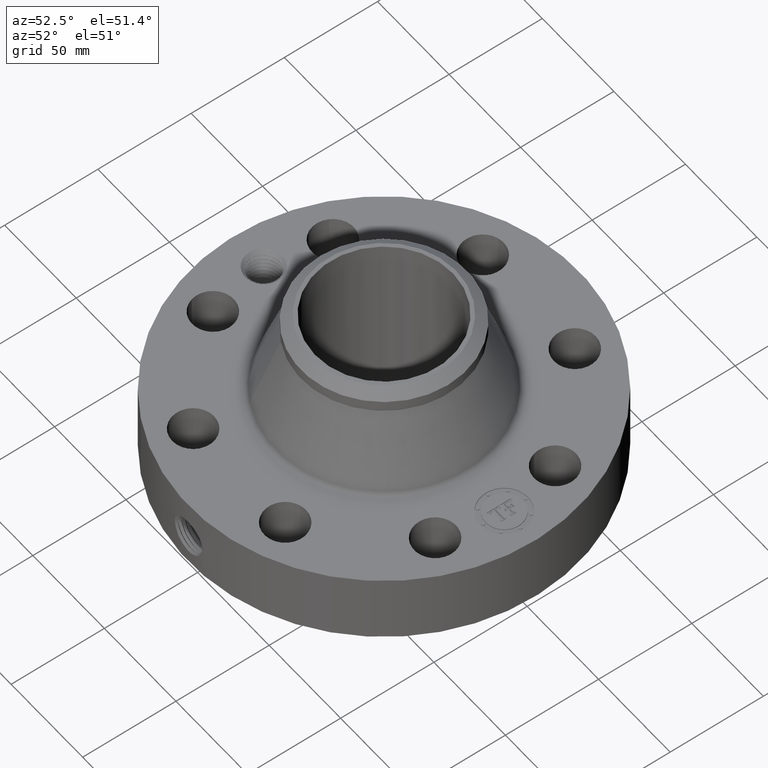
[diagram: clean part render]
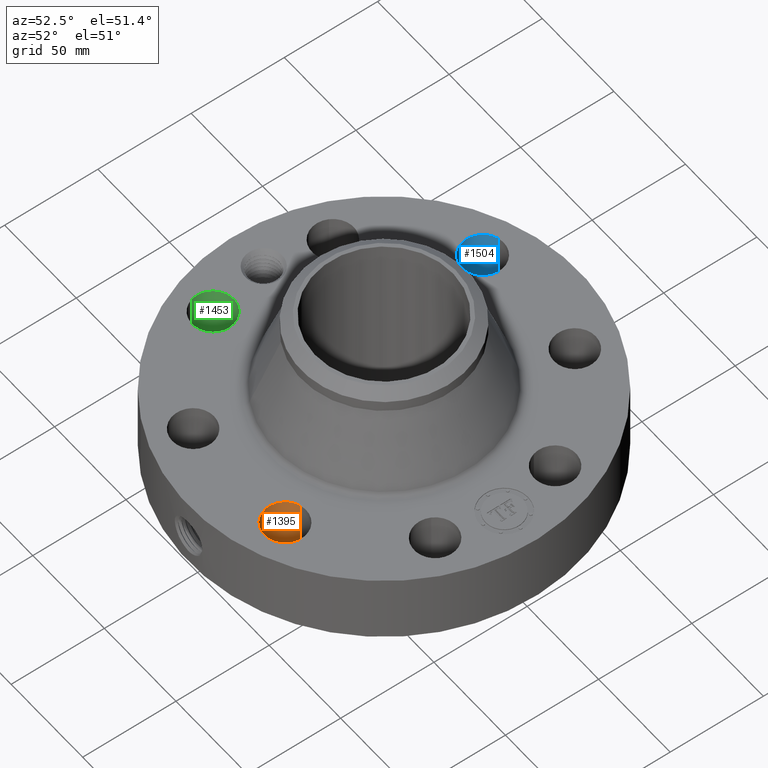
[diagram: same view with three faces highlighted in distinct colors, each labeled with its STEP entity id]
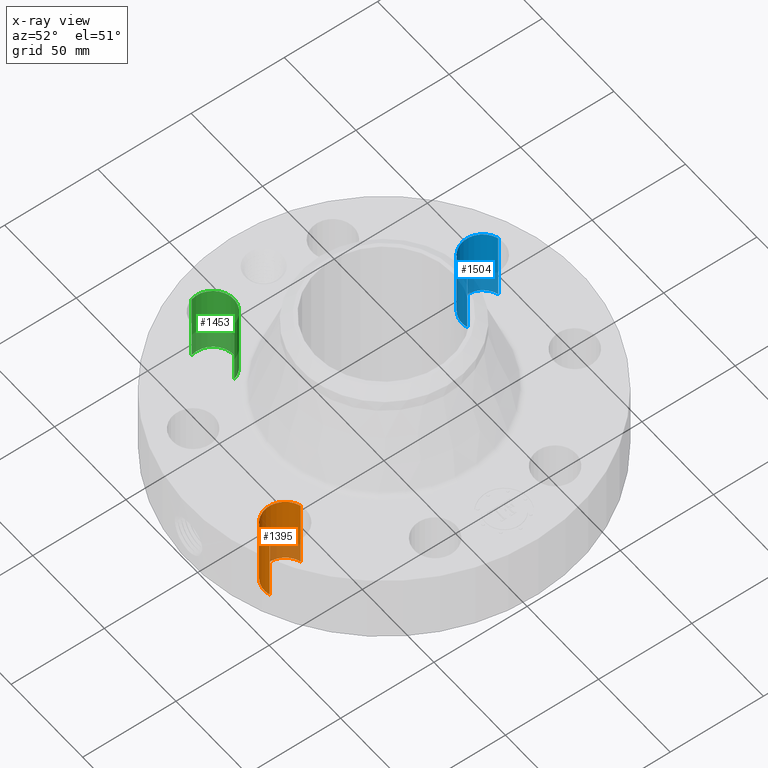
[diagram: x-ray of the same camera — body ghosted, the three highlighted faces saturated]
A machine part, auxiliary view with three faces highlighted in distinct colors.
The next image is the same camera in x-ray (body ghosted, the three faces saturated) — at least one of them is partly hidden behind the body in this view.
Their STEP definitions:

[orange] entity #1395 — the highlighted cylindrical surface (edge-blend (fillet) strip) has radius 11.176 mm, axis along (0, -0, -1).
#269=AXIS2_PLACEMENT_3D('Circle Axis2P3D',#267,#268,$) ;
#577=AXIS2_PLACEMENT_3D('Circle Axis2P3D',#575,#576,$) ;
#1370=AXIS2_PLACEMENT_3D('Cylinder Axis2P3D',#1367,#1368,#1369) ;
#262=CARTESIAN_POINT('Vertex',(1.14280476743,-2.63583941543,0.250000000001)) ;
#264=CARTESIAN_POINT('Vertex',(1.39055955484,-3.48024308982,0.250000000001)) ;
#267=CARTESIAN_POINT('Axis2P3D Location',(1.26668216113,-3.05804125262,0.250000000001)) ;
#575=CARTESIAN_POINT('Axis2P3D Location',(1.26668216113,-3.05804125262,1.75000000001)) ;
#579=CARTESIAN_POINT('Vertex',(1.39055955484,-3.48024308982,1.75000000001)) ;
#581=CARTESIAN_POINT('Vertex',(1.14280476743,-2.63583941543,1.75000000001)) ;
#1367=CARTESIAN_POINT('Axis2P3D Location',(1.26668216113,-3.05804125262,1.74606299213)) ;
#1372=CARTESIAN_POINT('Line Origine',(1.14280476743,-2.63583941543,1.)) ;
#1377=CARTESIAN_POINT('Line Origine',(1.39055955484,-3.48024308982,1.)) ;
#268=DIRECTION('Axis2P3D Direction',(0.,0.,-0.0393700787402)) ;
#576=DIRECTION('Axis2P3D Direction',(0.,0.,-0.0393700787402)) ;
#1368=DIRECTION('Axis2P3D Direction',(0.,-0.,-0.0393700787402)) ;
#1369=DIRECTION('Axis2P3D XDirection',(0.0110842335096,-0.0377775444876,0.)) ;
#1373=DIRECTION('Vector Direction',(0.,0.,-0.0393700787402)) ;
#1378=DIRECTION('Vector Direction',(0.,0.,-0.0393700787402)) ;
#1374=VECTOR('Line Direction',#1373,0.0393700787402) ;
#1379=VECTOR('Line Direction',#1378,0.0393700787402) ;
#1390=ORIENTED_EDGE('',*,*,#1381,.F.) ;
#1391=ORIENTED_EDGE('',*,*,#271,.T.) ;
#1392=ORIENTED_EDGE('',*,*,#1376,.T.) ;
#1393=ORIENTED_EDGE('',*,*,#583,.F.) ;
#1395=ADVANCED_FACE('PartBody',(#1394),#1371,.F.) ;
#270=CIRCLE('generated circle',#269,0.440000000002) ;
#578=CIRCLE('generated circle',#577,0.440000000002) ;
#1371=CYLINDRICAL_SURFACE('generated cylinder',#1370,0.440000000002) ;
#271=EDGE_CURVE('',#265,#263,#270,.T.) ;
#583=EDGE_CURVE('',#580,#582,#578,.T.) ;
#1376=EDGE_CURVE('',#263,#582,#1375,.F.) ;
#1381=EDGE_CURVE('',#265,#580,#1380,.F.) ;
#1389=EDGE_LOOP('',(#1390,#1391,#1392,#1393)) ;
#1394=FACE_OUTER_BOUND('',#1389,.T.) ;
#1375=LINE('Line',#1372,#1374) ;
#1380=LINE('Line',#1377,#1379) ;
#263=VERTEX_POINT('',#262) ;
#265=VERTEX_POINT('',#264) ;
#580=VERTEX_POINT('',#579) ;
#582=VERTEX_POINT('',#581) ;

[blue] entity #1504 — the highlighted cylindrical surface (edge-blend (fillet) strip) has radius 11.176 mm, axis along (0, 0, -1).
#332=AXIS2_PLACEMENT_3D('Circle Axis2P3D',#330,#331,$) ;
#658=AXIS2_PLACEMENT_3D('Circle Axis2P3D',#656,#657,$) ;
#1486=AXIS2_PLACEMENT_3D('Cylinder Axis2P3D',#1483,#1484,#1485) ;
#330=CARTESIAN_POINT('Axis2P3D Location',(-1.26668216113,3.05804125262,0.250000000001)) ;
#334=CARTESIAN_POINT('Vertex',(-1.14280476743,2.63583941543,0.250000000001)) ;
#336=CARTESIAN_POINT('Vertex',(-1.39055955484,3.48024308982,0.250000000001)) ;
#651=CARTESIAN_POINT('Vertex',(-1.39055955484,3.48024308982,1.75000000001)) ;
#653=CARTESIAN_POINT('Vertex',(-1.14280476743,2.63583941543,1.75000000001)) ;
#656=CARTESIAN_POINT('Axis2P3D Location',(-1.26668216113,3.05804125262,1.75000000001)) ;
#1483=CARTESIAN_POINT('Axis2P3D Location',(-1.26668216113,3.05804125262,1.74606299213)) ;
#1488=CARTESIAN_POINT('Line Origine',(-1.14280476743,2.63583941543,1.)) ;
#1493=CARTESIAN_POINT('Line Origine',(-1.39055955484,3.48024308982,1.)) ;
#331=DIRECTION('Axis2P3D Direction',(0.,0.,-0.0393700787402)) ;
#657=DIRECTION('Axis2P3D Direction',(0.,0.,-0.0393700787402)) ;
#1484=DIRECTION('Axis2P3D Direction',(0.,0.,-0.0393700787402)) ;
#1485=DIRECTION('Axis2P3D XDirection',(-0.0110842335096,0.0377775444876,0.)) ;
#1489=DIRECTION('Vector Direction',(0.,0.,-0.0393700787402)) ;
#1494=DIRECTION('Vector Direction',(0.,0.,-0.0393700787402)) ;
#1490=VECTOR('Line Direction',#1489,0.0393700787402) ;
#1495=VECTOR('Line Direction',#1494,0.0393700787402) ;
#1499=ORIENTED_EDGE('',*,*,#1492,.F.) ;
#1500=ORIENTED_EDGE('',*,*,#338,.T.) ;
#1501=ORIENTED_EDGE('',*,*,#1497,.T.) ;
#1502=ORIENTED_EDGE('',*,*,#660,.F.) ;
#1504=ADVANCED_FACE('PartBody',(#1503),#1487,.F.) ;
#333=CIRCLE('generated circle',#332,0.440000000002) ;
#659=CIRCLE('generated circle',#658,0.440000000002) ;
#1487=CYLINDRICAL_SURFACE('generated cylinder',#1486,0.440000000002) ;
#338=EDGE_CURVE('',#335,#337,#333,.T.) ;
#660=EDGE_CURVE('',#654,#652,#659,.T.) ;
#1492=EDGE_CURVE('',#335,#654,#1491,.F.) ;
#1497=EDGE_CURVE('',#337,#652,#1496,.F.) ;
#1498=EDGE_LOOP('',(#1499,#1500,#1501,#1502)) ;
#1503=FACE_OUTER_BOUND('',#1498,.T.) ;
#1491=LINE('Line',#1488,#1490) ;
#1496=LINE('Line',#1493,#1495) ;
#335=VERTEX_POINT('',#334) ;
#337=VERTEX_POINT('',#336) ;
#652=VERTEX_POINT('',#651) ;
#654=VERTEX_POINT('',#653) ;

[green] entity #1453 — the highlighted cylindrical surface (edge-blend (fillet) strip) has radius 11.176 mm, axis along (-0, 0, -1).
#305=AXIS2_PLACEMENT_3D('Circle Axis2P3D',#303,#304,$) ;
#613=AXIS2_PLACEMENT_3D('Circle Axis2P3D',#611,#612,$) ;
#1428=AXIS2_PLACEMENT_3D('Cylinder Axis2P3D',#1425,#1426,#1427) ;
#298=CARTESIAN_POINT('Vertex',(-2.63583941543,-1.14280476743,0.250000000001)) ;
#300=CARTESIAN_POINT('Vertex',(-3.48024308982,-1.39055955484,0.250000000001)) ;
#303=CARTESIAN_POINT('Axis2P3D Location',(-3.05804125262,-1.26668216113,0.250000000001)) ;
#611=CARTESIAN_POINT('Axis2P3D Location',(-3.05804125262,-1.26668216113,1.75000000001)) ;
#615=CARTESIAN_POINT('Vertex',(-3.48024308982,-1.39055955484,1.75000000001)) ;
#617=CARTESIAN_POINT('Vertex',(-2.63583941543,-1.14280476743,1.75000000001)) ;
#1425=CARTESIAN_POINT('Axis2P3D Location',(-3.05804125262,-1.26668216113,1.74606299213)) ;
#1430=CARTESIAN_POINT('Line Origine',(-2.63583941543,-1.14280476743,1.)) ;
#1435=CARTESIAN_POINT('Line Origine',(-3.48024308982,-1.39055955484,1.)) ;
#304=DIRECTION('Axis2P3D Direction',(0.,0.,-0.0393700787402)) ;
#612=DIRECTION('Axis2P3D Direction',(0.,0.,-0.0393700787402)) ;
#1426=DIRECTION('Axis2P3D Direction',(-0.,0.,-0.0393700787402)) ;
#1427=DIRECTION('Axis2P3D XDirection',(-0.0377775444876,-0.0110842335096,0.)) ;
#1431=DIRECTION('Vector Direction',(0.,0.,-0.0393700787402)) ;
#1436=DIRECTION('Vector Direction',(0.,0.,-0.0393700787402)) ;
#1432=VECTOR('Line Direction',#1431,0.0393700787402) ;
#1437=VECTOR('Line Direction',#1436,0.0393700787402) ;
#1448=ORIENTED_EDGE('',*,*,#1439,.F.) ;
#1449=ORIENTED_EDGE('',*,*,#307,.T.) ;
#1450=ORIENTED_EDGE('',*,*,#1434,.T.) ;
#1451=ORIENTED_EDGE('',*,*,#619,.F.) ;
#1453=ADVANCED_FACE('PartBody',(#1452),#1429,.F.) ;
#306=CIRCLE('generated circle',#305,0.440000000002) ;
#614=CIRCLE('generated circle',#613,0.440000000002) ;
#1429=CYLINDRICAL_SURFACE('generated cylinder',#1428,0.440000000002) ;
#307=EDGE_CURVE('',#301,#299,#306,.T.) ;
#619=EDGE_CURVE('',#616,#618,#614,.T.) ;
#1434=EDGE_CURVE('',#299,#618,#1433,.F.) ;
#1439=EDGE_CURVE('',#301,#616,#1438,.F.) ;
#1447=EDGE_LOOP('',(#1448,#1449,#1450,#1451)) ;
#1452=FACE_OUTER_BOUND('',#1447,.T.) ;
#1433=LINE('Line',#1430,#1432) ;
#1438=LINE('Line',#1435,#1437) ;
#299=VERTEX_POINT('',#298) ;
#301=VERTEX_POINT('',#300) ;
#616=VERTEX_POINT('',#615) ;
#618=VERTEX_POINT('',#617) ;